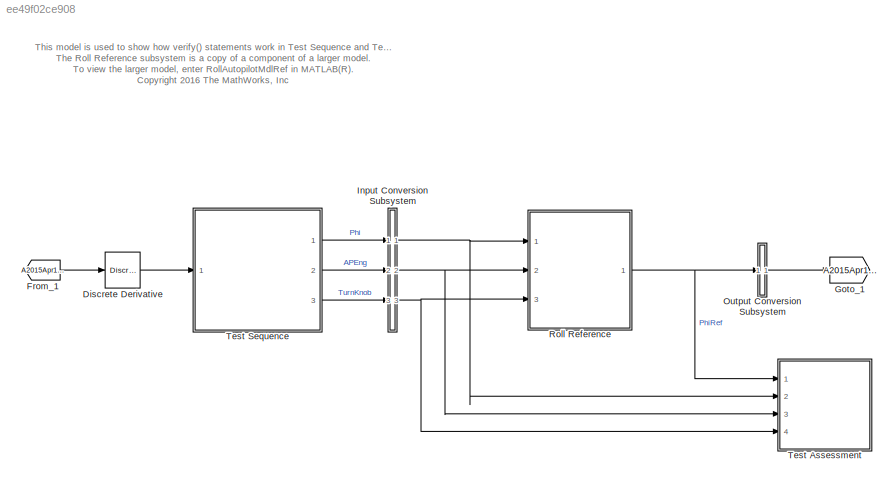
MODEL slx_ee49f02ce908
KIND model
CONFIG AbsTol = auto
CONFIG EnableMultiTasking = off
CONFIG FixedStep = 1/40
CONFIG MaxStep = auto
CONFIG MinStep = auto
CONFIG RelTol = 1e-3
CONFIG SampleTimeConstraint = Unconstrained
CONFIG Solver = FixedStepDiscrete
CONFIG SolverName = FixedStepDiscrete
CONFIG StartTime = 0.0
CONFIG StopTime = 50
BLOCK [Reference] Discrete Derivative  REF=simulink/Discrete/Discrete Derivative
  Ports = [1, 1]
  SourceBlock = simulink/Discrete/Discrete Derivative
  SourceProductBaseCode = SL
  SourceProductName = Simulink
  SourceType = Discrete Derivative
BLOCK [From] From_1
  GotoTag = A2015Apr15173748_1
BLOCK [Goto] Goto_1
  GotoTag = A2015Apr15173748_1
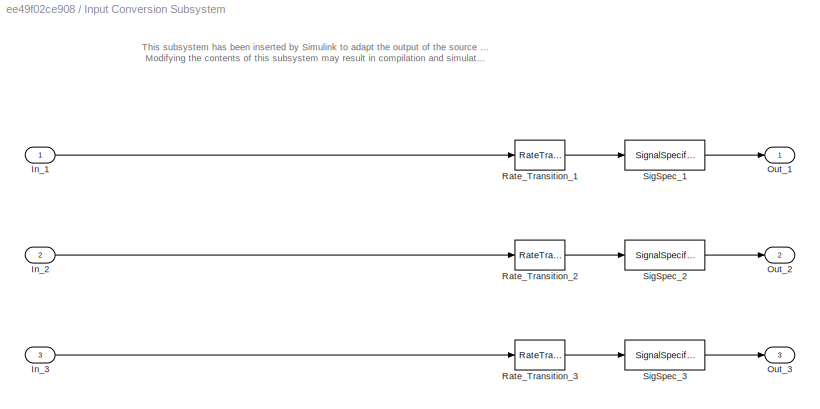
BLOCK [SubSystem] Input Conversion Subsystem
  Permissions = ReadOnly
  PermitHierarchicalResolution = ExplicitOnly
  Ports = [3, 3]
  RequestExecContextInheritance = off
  Tag = _input_conv_ss_
  UserDataPersistent = on
BLOCK [Inport] Input Conversion Subsystem/In_1
  IconDisplay = Port number
BLOCK [Inport] Input Conversion Subsystem/In_2
  IconDisplay = Port number
  Port = 2
BLOCK [Inport] Input Conversion Subsystem/In_3
  IconDisplay = Port number
  Port = 3
BLOCK [Outport] Input Conversion Subsystem/Out_1
  IconDisplay = Port number
BLOCK [Outport] Input Conversion Subsystem/Out_2
  IconDisplay = Port number
  Port = 2
BLOCK [Outport] Input Conversion Subsystem/Out_3
  IconDisplay = Port number
  Port = 3
BLOCK [RateTransition] Input Conversion Subsystem/Rate_Transition_1
  OutPortSampleTime = 0.025
BLOCK [RateTransition] Input Conversion Subsystem/Rate_Transition_2
  OutPortSampleTime = 0.025
BLOCK [RateTransition] Input Conversion Subsystem/Rate_Transition_3
  OutPortSampleTime = 0.025
BLOCK [SignalSpecification] Input Conversion Subsystem/SigSpec_1
  Dimensions = [1]
  OutDataTypeStr = double
  SampleTime = 0.025
  SignalType = real
  VarSizeSig = No
BLOCK [SignalSpecification] Input Conversion Subsystem/SigSpec_2
  Dimensions = [1]
  OutDataTypeStr = boolean
  SampleTime = 0.025
  SignalType = real
  VarSizeSig = No
BLOCK [SignalSpecification] Input Conversion Subsystem/SigSpec_3
  Dimensions = [1]
  OutDataTypeStr = double
  SampleTime = 0.025
  SignalType = real
  VarSizeSig = No
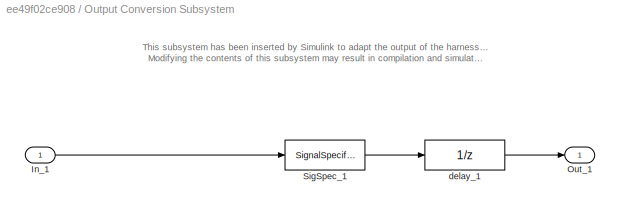
BLOCK [SubSystem] Output Conversion Subsystem
  Permissions = ReadOnly
  PermitHierarchicalResolution = ExplicitOnly
  Ports = [1, 1]
  RequestExecContextInheritance = off
  Tag = _output_conv_ss_
  UserDataPersistent = on
BLOCK [Inport] Output Conversion Subsystem/In_1
  IconDisplay = Port number
BLOCK [Outport] Output Conversion Subsystem/Out_1
  IconDisplay = Port number
BLOCK [SignalSpecification] Output Conversion Subsystem/SigSpec_1
  Dimensions = [1]
  OutDataTypeStr = double
  SampleTime = 0.025
  SignalType = real
  VarSizeSig = No
BLOCK [UnitDelay] Output Conversion Subsystem/delay_1
  HasFrameUpgradeWarning = on
  SampleTime = -1
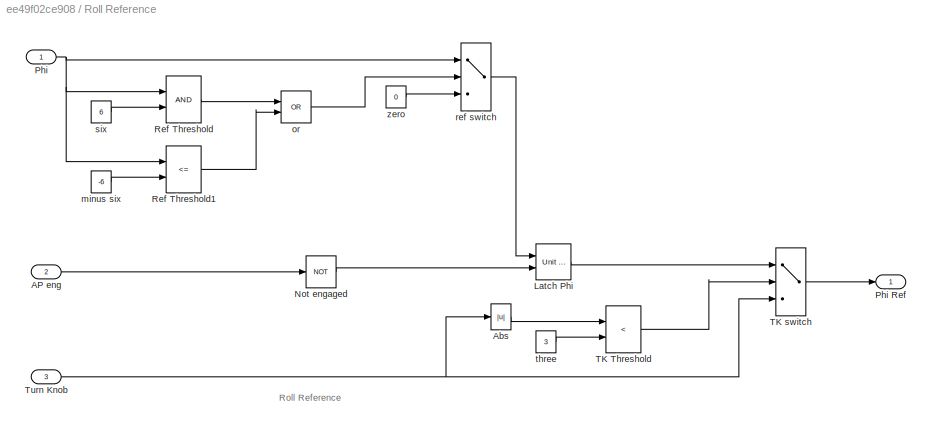
BLOCK [SubSystem] Roll Reference
  Ports = [3, 1]
  RTWSystemCode = Inline
  RequestExecContextInheritance = off
  TreatAsAtomicUnit = on
BLOCK [Inport] Roll Reference/AP eng
  IconDisplay = Port number
  Port = 2
BLOCK [Abs] Roll Reference/Abs
  SaturateOnIntegerOverflow = off
BLOCK [Reference] Roll Reference/Latch Phi  REF=simulink_need_slupdate/Unit Delay
Enabled
  Ports = [2, 1]
  SourceBlock = simulink_need_slupdate/Unit Delay\nEnabled
  SourceProductBaseCode = SL
  SourceProductName = Simulink
  SourceType = Unit Delay Enabled
BLOCK [Logic] Roll Reference/Not engaged
  AllPortsSameDT = off
  IconShape = distinctive
  Operator = NOT
  OutDataTypeStr = boolean
  Ports = [1, 1]
BLOCK [Inport] Roll Reference/Phi
  IconDisplay = Port number
BLOCK [Outport] Roll Reference/Phi Ref
  IconDisplay = Port number
BLOCK [RelationalOperator] Roll Reference/Ref Threshold
  OutDataTypeStr = boolean
  Ports = [2, 1]
BLOCK [RelationalOperator] Roll Reference/Ref Threshold1
  Operator = <=
  OutDataTypeStr = boolean
  Ports = [2, 1]
BLOCK [RelationalOperator] Roll Reference/TK Threshold
  Operator = <
  OutDataTypeStr = boolean
  Ports = [2, 1]
BLOCK [Switch] Roll Reference/TK switch
  Criteria = u2 ~= 0
  InputSameDT = off
  SaturateOnIntegerOverflow = off
BLOCK [Inport] Roll Reference/Turn Knob
  IconDisplay = Port number
  Port = 3
BLOCK [Constant] Roll Reference/minus six
  Value = -6
BLOCK [Logic] Roll Reference/or
  IconShape = distinctive
  Operator = OR
  OutDataTypeStr = boolean
  Ports = [2, 1]
BLOCK [Switch] Roll Reference/ref switch
  Criteria = u2 ~= 0
  InputSameDT = off
  SaturateOnIntegerOverflow = off
BLOCK [Constant] Roll Reference/six
  Value = 6
BLOCK [Constant] Roll Reference/three
  OutDataTypeStr = double
  Value = 3
BLOCK [Constant] Roll Reference/zero
  Value = 0
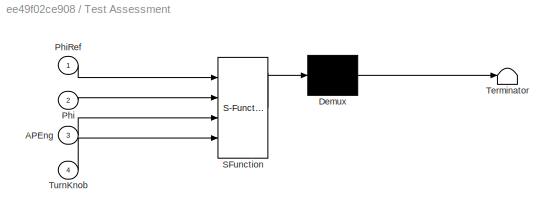
BLOCK [SubSystem] Test Assessment
  ErrorFcn = Stateflow.Translate.translate
  PermitHierarchicalResolution = ExplicitOnly
  Ports = [4]
  RequestExecContextInheritance = off
  SFBlockType = Test Sequence
  TreatAsAtomicUnit = on
BLOCK [Demux] Test Assessment/ Demux 
  Outputs = 1
  Ports = [1, 1]
BLOCK [S-Function] Test Assessment/ SFunction 
  EnableBusSupport = off
  FunctionName = sf_sfun
  PortCounts = [4 1]
  Ports = [4, 1]
  SFcnIsStateOwnerBlock = off
  SFunctionDeploymentMode = off
  Tag = Stateflow S-Function sltestRollRefTestExample 1
BLOCK [Terminator] Test Assessment/ Terminator 
BLOCK [Inport] Test Assessment/APEng
  IconDisplay = Port number
  Port = 3
BLOCK [Inport] Test Assessment/Phi
  IconDisplay = Port number
  Port = 2
BLOCK [Inport] Test Assessment/PhiRef
  IconDisplay = Port number
BLOCK [Inport] Test Assessment/TurnKnob
  IconDisplay = Port number
  Port = 4
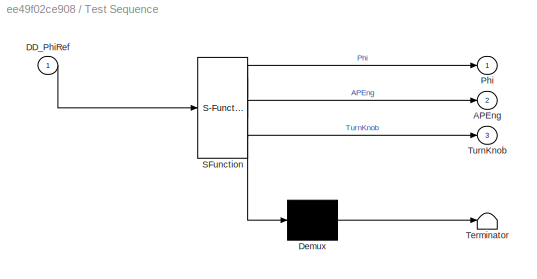
BLOCK [SubSystem] Test Sequence
  ErrorFcn = Stateflow.Translate.translate
  PermitHierarchicalResolution = ExplicitOnly
  Ports = [1, 3]
  RequestExecContextInheritance = off
  SFBlockType = Test Sequence
  TreatAsAtomicUnit = on
BLOCK [Demux] Test Sequence/ Demux 
  Outputs = 1
  Ports = [1, 1]
BLOCK [S-Function] Test Sequence/ SFunction 
  EnableBusSupport = off
  FunctionName = sf_sfun
  PortCounts = [1 4]
  Ports = [1, 4]
  SFcnIsStateOwnerBlock = off
  SFunctionDeploymentMode = off
  Tag = Stateflow S-Function sltestRollRefTestExample 4
BLOCK [Terminator] Test Sequence/ Terminator 
BLOCK [Outport] Test Sequence/APEng
  IconDisplay = Port number
  Port = 2
BLOCK [Inport] Test Sequence/DD_PhiRef
  IconDisplay = Port number
BLOCK [Outport] Test Sequence/Phi
  IconDisplay = Port number
BLOCK [Outport] Test Sequence/TurnKnob
  IconDisplay = Port number
  Port = 3
ANNOTATION (root): This model is used to show how verify() statements work in Test Sequence and Test Assessment blocks, The Roll Reference subsystem is a copy of a component of a larger model. To view the larger model, enter RollAutopilotMdlRef in MATLAB(R). <copyright redacted>
ANNOTATION Input Conversion Subsystem: This subsystem has been inserted by Simulink to adapt the output of the source blocks to the interface required by the harnessed component. Modifying the contents of this subsystem may result in compilation and simulation failure.
ANNOTATION Output Conversion Subsystem: This subsystem has been inserted by Simulink to adapt the output of the harnessed component to the interface required by the sink blocks. Modifying the contents of this subsystem may result in compilation and simulation failure.
ANNOTATION Roll Reference: Roll Reference
LINE Discrete Derivative:1 -> Test Sequence:1
LINE From_1:1 -> Discrete Derivative:1
LINE Input Conversion Subsystem/In_1:1 -> Input Conversion Subsystem/Rate_Transition_1:1
LINE Input Conversion Subsystem/In_2:1 -> Input Conversion Subsystem/Rate_Transition_2:1
LINE Input Conversion Subsystem/In_3:1 -> Input Conversion Subsystem/Rate_Transition_3:1
LINE Input Conversion Subsystem/Rate_Transition_1:1 -> Input Conversion Subsystem/SigSpec_1:1
LINE Input Conversion Subsystem/Rate_Transition_2:1 -> Input Conversion Subsystem/SigSpec_2:1
LINE Input Conversion Subsystem/Rate_Transition_3:1 -> Input Conversion Subsystem/SigSpec_3:1
LINE Input Conversion Subsystem/SigSpec_1:1 -> Input Conversion Subsystem/Out_1:1
LINE Input Conversion Subsystem/SigSpec_2:1 -> Input Conversion Subsystem/Out_2:1
LINE Input Conversion Subsystem/SigSpec_3:1 -> Input Conversion Subsystem/Out_3:1
NET Input Conversion Subsystem:1 -> Roll Reference:1, Test Assessment:2
NET Input Conversion Subsystem:2 -> Roll Reference:2, Test Assessment:3
NET Input Conversion Subsystem:3 -> Roll Reference:3, Test Assessment:4
LINE Output Conversion Subsystem/In_1:1 -> Output Conversion Subsystem/SigSpec_1:1
LINE Output Conversion Subsystem/SigSpec_1:1 -> Output Conversion Subsystem/delay_1:1
LINE Output Conversion Subsystem/delay_1:1 -> Output Conversion Subsystem/Out_1:1
LINE Output Conversion Subsystem:1 -> Goto_1:1
LINE Roll Reference/AP eng:1 -> Roll Reference/Not engaged:1
LINE Roll Reference/Abs:1 -> Roll Reference/TK Threshold:1
LINE Roll Reference/Latch Phi:1 -> Roll Reference/TK switch:1
LINE Roll Reference/Not engaged:1 -> Roll Reference/Latch Phi:2
NET Roll Reference/Phi:1 -> Roll Reference/Ref Threshold1:1, Roll Reference/Ref Threshold:1, Roll Reference/ref switch:1
LINE Roll Reference/Ref Threshold1:1 -> Roll Reference/or:2
LINE Roll Reference/Ref Threshold:1 -> Roll Reference/or:1
LINE Roll Reference/TK Threshold:1 -> Roll Reference/TK switch:2
LINE Roll Reference/TK switch:1 -> Roll Reference/Phi Ref:1
NET Roll Reference/Turn Knob:1 -> Roll Reference/Abs:1, Roll Reference/TK switch:3
LINE Roll Reference/minus six:1 -> Roll Reference/Ref Threshold1:2
LINE Roll Reference/or:1 -> Roll Reference/ref switch:2
LINE Roll Reference/ref switch:1 -> Roll Reference/Latch Phi:1
LINE Roll Reference/six:1 -> Roll Reference/Ref Threshold:2
LINE Roll Reference/three:1 -> Roll Reference/TK Threshold:2
LINE Roll Reference/zero:1 -> Roll Reference/ref switch:3
NET Roll Reference:1 -> Output Conversion Subsystem:1, Test Assessment:1
LINE Test Sequence:1 -> Input Conversion Subsystem:1
LINE Test Sequence:2 -> Input Conversion Subsystem:2
LINE Test Sequence:3 -> Input Conversion Subsystem:3
note: NET lines group one-source signal fan-out (src -> all destinations, sorted); 1:1 wires keep LINE
CHART Test Sequence states=26 transitions=26
  STATE_LABEL 'InitializeTest\nPhi = 0;\nAPEng = false;\nTurnKnob = 0;\n% Initializes test sequence outputs'
  STATE_LABEL 'AttitudeLevels\nTurnKnob = 0;\nEndTest = 0;\n% Tests correct PhiRef for several attitudes with 0 turn knob\n'
  STATE_LABEL 'APEngage_LowRoll\n% Tests low attitude'
  STATE_LABEL 'SetLowPhi\nPhi = 4;\nAPEng = false;'
  STATE_LABEL 'EngageAP_Low\nAPEng = true;'
  STATE_LABEL '[true]'
  STATE_LABEL 'APEngage_MedRoll\n% Tests medium attitude'
  STATE_LABEL 'SetMedPhi\nPhi = 11.5;\nAPEng = false;'
  STATE_LABEL 'EngageAP_Med\nAPEng = true;'
  STATE_LABEL '[true]'
  STATE_LABEL 'APEngage_HighRoll\n% Tests high attitude'
  STATE_LABEL 'SetHighPhi\nPhi = 30.6;\nAPEng = false;'
  STATE_LABEL 'EngageAP_High\nAPEng = true;'
  STATE_LABEL '[true]'
  STATE_LABEL 'APEngagement_End\nEndTest = 1;'
  STATE_LABEL '[duration(DD_PhiRef == 0,sec) >= DurationLimit\n\n% transitions when the discrete derivative of PhiRef \n% is equal to 0 for a certain time limit. This means the\n% signal is not changing.\n]'
  STATE_LABEL '[duration(DD_PhiRef == 0,sec) >= DurationLimit]'
  STATE_LABEL '[duration(DD_PhiRef == 0,sec) >= DurationLimit]'
  STATE_LABEL 'APEngage_LowRoll\n% Tests low attitude'
  STATE_LABEL 'SetLowPhi\nPhi = 4;\nAPEng = false;'
  STATE_LABEL 'EngageAP_Low\nAPEng = true;'
  STATE_LABEL '[true]'
  STATE_LABEL 'SetLowPhi\nPhi = 4;\nAPEng = false;'
  STATE_LABEL 'EngageAP_Low\nAPEng = true;'
  STATE_LABEL 'APEngage_MedRoll\n% Tests medium attitude'
  STATE_LABEL 'SetMedPhi\nPhi = 11.5;\nAPEng = false;'
  STATE_LABEL 'EngageAP_Med\nAPEng = true;'
  STATE_LABEL '[true]'
  STATE_LABEL 'SetMedPhi\nPhi = 11.5;\nAPEng = false;'
  STATE_LABEL 'EngageAP_Med\nAPEng = true;'
  STATE_LABEL 'APEngage_HighRoll\n% Tests high attitude'
  STATE_LABEL 'SetHighPhi\nPhi = 30.6;\nAPEng = false;'
  STATE_LABEL 'EngageAP_High\nAPEng = true;'
  STATE_LABEL '[true]'
  STATE_LABEL 'SetHighPhi\nPhi = 30.6;\nAPEng = false;'
  STATE_LABEL 'EngageAP_High\nAPEng = true;'
  STATE_LABEL 'APEngagement_End\nEndTest = 1;'
  STATE_LABEL 'TurnKnobLevels\nEndTest = 0;\nPhi = 0;\n% Tests correct PhiRef for several knob settings with 0 attitude'
  STATE_LABEL 'InitializeAPKnob\nTurnKnob = 0;\nAPEng = false;\n'
  STATE_LABEL 'TurnKnobLow\n% Tests low knob setting'
CHART Test Assessment states=10 transitions=39
  STATE_LABEL 'GlobalAssessment'
  STATE_LABEL "NormalRange\nverify((~(PhiRef < Phi) && ~(PhiRef > Phi)),'Simulink:verify_normal','PhiRef must equal Phi for normal operation')"
  STATE_LABEL "BelowLowLimit\nverify((~(PhiRef < 0) && ~(PhiRef > 0)),'Simulink:verify_low','PhiRef must equal 0 for low angle operation')"
  STATE_LABEL "ExceedPosLimit\nverify((~(PhiRef < 30) && ~(PhiRef > 30)),'Simulink:verify_high','PhiRef must equal 30 for high pos angle operation')"
  STATE_LABEL "ExceedNegLimit\nverify((~(PhiRef < -30) && ~(PhiRef > 30)),'Simulink:verify_high','PhiRef must equal -30 for high neg angle operation')"
  STATE_LABEL 'TurnKnobAssessments'
  STATE_LABEL "BelowLowTKLimit\nverify((~(PhiRef < 0) && ~(PhiRef > 0)),'Simulink:verifyTKLow','PhiRef must equal 0 for low TK operation')"
  STATE_LABEL "NormalTKLimit\nverify((~(PhiRef < TurnKnob) && ~(PhiRef > TurnKnob)),'Simulink:verifyTKNormal','PhiRef must equal TurnKnob for normal TK operation')"
  STATE_LABEL 'Else2'
  STATE_LABEL '[abs(Phi) < 3]'
  STATE_LABEL '[~in(BelowLowTKLimit)]'
  STATE_LABEL '[abs(Phi) >=3 && Phi <= 30]'
  STATE_LABEL '[~in(NormalTKLimit)]'
  STATE_LABEL '[~in(Else2)]'
  STATE_LABEL 'Else1'
  STATE_LABEL '[(abs(Phi) >= 6 && Phi <= 30) && APEng == true && TurnKnob == false]'
  STATE_LABEL '[~in(NormalRange)]'
  STATE_LABEL '[abs(Phi) < 6 && APEng == true && TurnKnob == false]'
  STATE_LABEL '[~in(BelowLowLimit)]'
  STATE_LABEL '[Phi > 30 && APEng == true && TurnKnob == false]'
  STATE_LABEL '[~in(ExceedPosLimit)]'
  STATE_LABEL '[Phi < -30 && APEng == true && TurnKnob == false]'
  STATE_LABEL '[~in(ExceedNegLimit)]'
  STATE_LABEL '[APEng == true && TurnKnob == true]'
  STATE_LABEL '[~in(TurnKnobAssessments)]'
  STATE_LABEL '[~in(Else1)]'
  STATE_LABEL "NormalRange\nverify((~(PhiRef < Phi) && ~(PhiRef > Phi)),'Simulink:verify_normal','PhiRef must equal Phi for normal operation')"
  STATE_LABEL "BelowLowLimit\nverify((~(PhiRef < 0) && ~(PhiRef > 0)),'Simulink:verify_low','PhiRef must equal 0 for low angle operation')"
  STATE_LABEL "ExceedPosLimit\nverify((~(PhiRef < 30) && ~(PhiRef > 30)),'Simulink:verify_high','PhiRef must equal 30 for high pos angle operation')"
  STATE_LABEL "ExceedNegLimit\nverify((~(PhiRef < -30) && ~(PhiRef > 30)),'Simulink:verify_high','PhiRef must equal -30 for high neg angle operation')"
  STATE_LABEL 'TurnKnobAssessments'
  STATE_LABEL "BelowLowTKLimit\nverify((~(PhiRef < 0) && ~(PhiRef > 0)),'Simulink:verifyTKLow','PhiRef must equal 0 for low TK operation')"
  STATE_LABEL "NormalTKLimit\nverify((~(PhiRef < TurnKnob) && ~(PhiRef > TurnKnob)),'Simulink:verifyTKNormal','PhiRef must equal TurnKnob for normal TK operation')"
  STATE_LABEL 'Else2'
  STATE_LABEL '[abs(Phi) < 3]'
  STATE_LABEL '[~in(BelowLowTKLimit)]'
  STATE_LABEL '[abs(Phi) >=3 && Phi <= 30]'
  STATE_LABEL '[~in(NormalTKLimit)]'
  STATE_LABEL '[~in(Else2)]'
  STATE_LABEL "BelowLowTKLimit\nverify((~(PhiRef < 0) && ~(PhiRef > 0)),'Simulink:verifyTKLow','PhiRef must equal 0 for low TK operation')"
CHART Test Sequence states=26 transitions=26
  STATE_LABEL 'InitializeTest\nPhi = 0;\nAPEng = false;\nTurnKnob = 0;\n% Initializes test sequence outputs'
  STATE_LABEL 'AttitudeLevels\nTurnKnob = 0;\nEndTest = 0;\n% Tests correct PhiRef for several attitudes with 0 turn knob\n'
  STATE_LABEL 'APEngage_LowRoll\n% Tests low attitude'
  STATE_LABEL 'SetLowPhi\nPhi = 4;\nAPEng = false;'
  STATE_LABEL 'EngageAP_Low\nAPEng = true;'
  STATE_LABEL '[true]'
  STATE_LABEL 'APEngage_MedRoll\n% Tests medium attitude'
  STATE_LABEL 'SetMedPhi\nPhi = 11.5;\nAPEng = false;'
  STATE_LABEL 'EngageAP_Med\nAPEng = true;'
  STATE_LABEL '[true]'
  STATE_LABEL 'APEngage_HighRoll\n% Tests high attitude'
  STATE_LABEL 'SetHighPhi\nPhi = 30.6;\nAPEng = false;'
  STATE_LABEL 'EngageAP_High\nAPEng = true;'
  STATE_LABEL '[true]'
  STATE_LABEL 'APEngagement_End\nEndTest = 1;'
  STATE_LABEL '[duration(DD_PhiRef == 0,sec) >= DurationLimit\n\n% transitions when the discrete derivative of PhiRef \n% is equal to 0 for a certain time limit. This means the\n% signal is not changing.\n]'
  STATE_LABEL '[duration(DD_PhiRef == 0,sec) >= DurationLimit]'
  STATE_LABEL '[duration(DD_PhiRef == 0,sec) >= DurationLimit]'
  STATE_LABEL 'APEngage_LowRoll\n% Tests low attitude'
  STATE_LABEL 'SetLowPhi\nPhi = 4;\nAPEng = false;'
  STATE_LABEL 'EngageAP_Low\nAPEng = true;'
  STATE_LABEL '[true]'
  STATE_LABEL 'SetLowPhi\nPhi = 4;\nAPEng = false;'
  STATE_LABEL 'EngageAP_Low\nAPEng = true;'
  STATE_LABEL 'APEngage_MedRoll\n% Tests medium attitude'
  STATE_LABEL 'SetMedPhi\nPhi = 11.5;\nAPEng = false;'
  STATE_LABEL 'EngageAP_Med\nAPEng = true;'
  STATE_LABEL '[true]'
  STATE_LABEL 'SetMedPhi\nPhi = 11.5;\nAPEng = false;'
  STATE_LABEL 'EngageAP_Med\nAPEng = true;'
  STATE_LABEL 'APEngage_HighRoll\n% Tests high attitude'
  STATE_LABEL 'SetHighPhi\nPhi = 30.6;\nAPEng = false;'
  STATE_LABEL 'EngageAP_High\nAPEng = true;'
  STATE_LABEL '[true]'
  STATE_LABEL 'SetHighPhi\nPhi = 30.6;\nAPEng = false;'
  STATE_LABEL 'EngageAP_High\nAPEng = true;'
  STATE_LABEL 'APEngagement_End\nEndTest = 1;'
  STATE_LABEL 'TurnKnobLevels\nEndTest = 0;\nPhi = 0;\n% Tests correct PhiRef for several knob settings with 0 attitude'
  STATE_LABEL 'InitializeAPKnob\nTurnKnob = 0;\nAPEng = false;\n'
  STATE_LABEL 'TurnKnobLow\n% Tests low knob setting'
